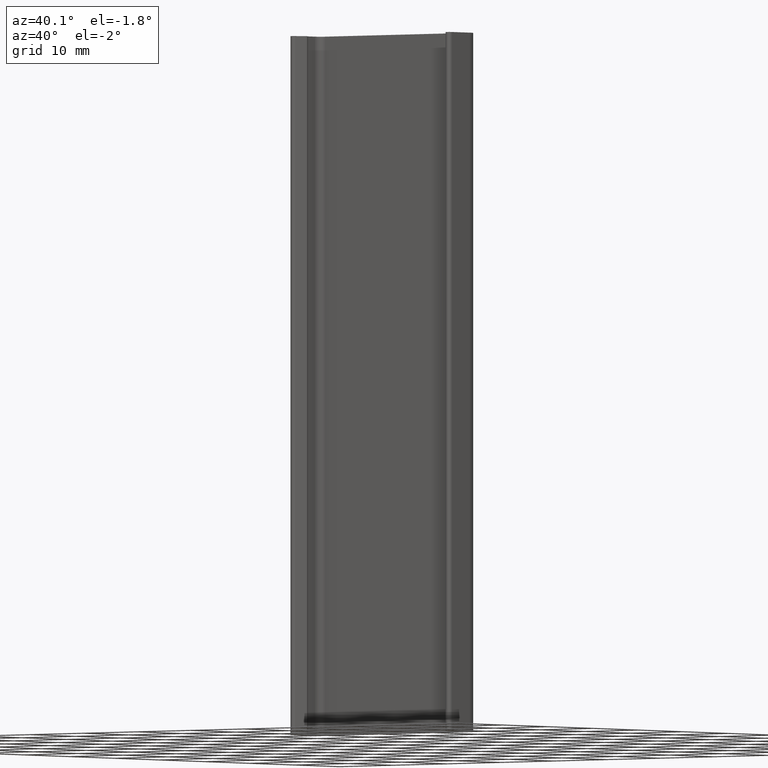
[diagram: clean part render]
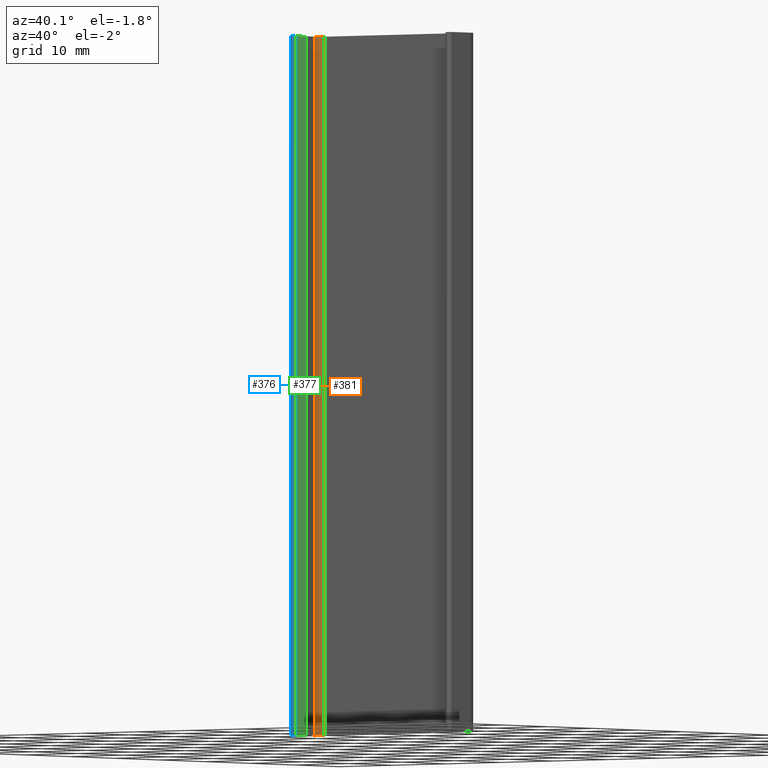
[diagram: same view with three faces highlighted in distinct colors, each labeled with its STEP entity id]
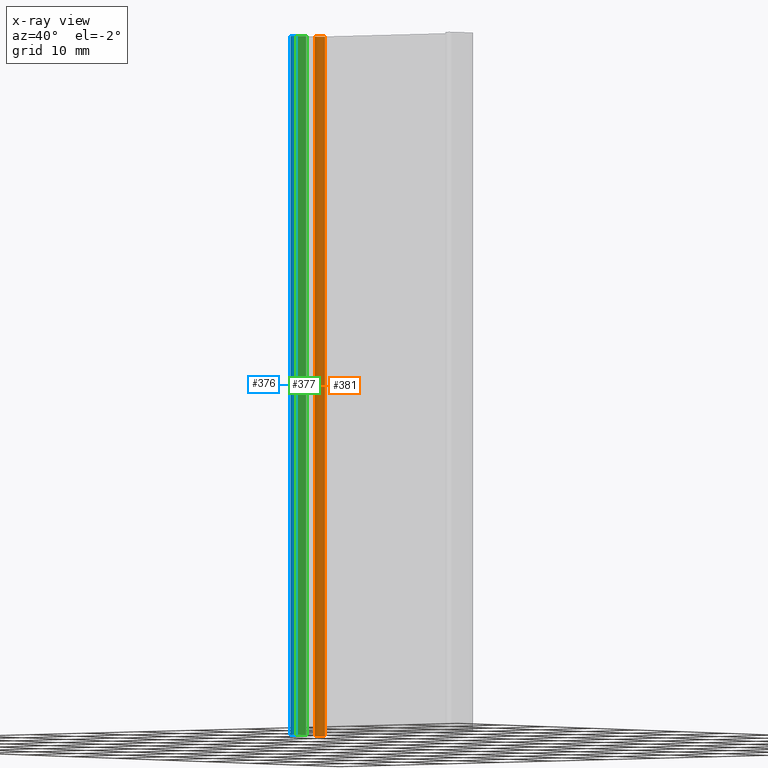
[diagram: x-ray of the same camera — body ghosted, the three highlighted faces saturated]
A machine part, auxiliary view with three faces highlighted in distinct colors.
The next image is the same camera in x-ray (body ghosted, the three faces saturated) — at least one of them is partly hidden behind the body in this view.
Their STEP definitions:

[orange] entity #381 — the highlighted cylindrical surface (edge-blend (fillet) strip) has radius 1 mm, axis along (0, 0, 1).
#29=CIRCLE('',#418,1.);
#30=CIRCLE('',#419,1.);
#38=CYLINDRICAL_SURFACE('',#417,1.);
#55=FACE_OUTER_BOUND('',#75,.T.);
#75=EDGE_LOOP('',(#309,#310,#311,#312));
#80=LINE('',#541,#118);
#114=LINE('',#637,#152);
#118=VECTOR('',#428,100.);
#152=VECTOR('',#520,100.);
#155=VERTEX_POINT('',#537);
#157=VERTEX_POINT('',#540);
#189=VERTEX_POINT('',#633);
#190=VERTEX_POINT('',#635);
#192=EDGE_CURVE('',#157,#155,#80,.T.);
#240=EDGE_CURVE('',#190,#189,#114,.T.);
#241=EDGE_CURVE('',#189,#155,#29,.T.);
#242=EDGE_CURVE('',#157,#190,#30,.T.);
#309=ORIENTED_EDGE('',*,*,#241,.F.);
#310=ORIENTED_EDGE('',*,*,#240,.F.);
#311=ORIENTED_EDGE('',*,*,#242,.F.);
#312=ORIENTED_EDGE('',*,*,#192,.T.);
#381=ADVANCED_FACE('',(#55),#38,.F.);
#417=AXIS2_PLACEMENT_3D('',#638,#521,#522);
#418=AXIS2_PLACEMENT_3D('',#639,#523,#524);
#419=AXIS2_PLACEMENT_3D('',#640,#525,#526);
#428=DIRECTION('',(0.,0.,1.));
#520=DIRECTION('',(0.,0.,1.));
#521=DIRECTION('center_axis',(0.,0.,1.));
#522=DIRECTION('ref_axis',(0.,1.,0.));
#523=DIRECTION('center_axis',(0.,0.,-1.));
#524=DIRECTION('ref_axis',(0.,1.,0.));
#525=DIRECTION('center_axis',(0.,0.,1.));
#526=DIRECTION('ref_axis',(0.,1.,0.));
#537=CARTESIAN_POINT('',(-12.6999999999994,-1.29999999999998,100.));
#540=CARTESIAN_POINT('',(-12.6999999999994,-1.29999999999998,0.));
#541=CARTESIAN_POINT('',(-12.6999999999994,-1.29999999999998,0.));
#633=CARTESIAN_POINT('',(-13.6999999999994,-2.29999999999998,100.));
#635=CARTESIAN_POINT('',(-13.6999999999994,-2.29999999999998,0.));
#637=CARTESIAN_POINT('',(-13.6999999999994,-2.29999999999998,0.));
#638=CARTESIAN_POINT('Origin',(-12.6999999999994,-2.29999999999998,0.));
#639=CARTESIAN_POINT('Origin',(-12.6999999999994,-2.29999999999998,100.));
#640=CARTESIAN_POINT('Origin',(-12.6999999999994,-2.29999999999998,0.));

[blue] entity #376 — the highlighted cylindrical surface (edge-blend (fillet) strip) has radius 0.5 mm, axis along (0, 0, 1).
#25=CIRCLE('',#409,0.499999999999943);
#26=CIRCLE('',#410,0.499999999999943);
#36=CYLINDRICAL_SURFACE('',#408,0.499999999999943);
#50=FACE_OUTER_BOUND('',#70,.T.);
#70=EDGE_LOOP('',(#289,#290,#291,#292));
#103=LINE('',#607,#141);
#104=LINE('',#613,#142);
#141=VECTOR('',#491,100.);
#142=VECTOR('',#498,100.);
#179=VERTEX_POINT('',#603);
#180=VERTEX_POINT('',#605);
#181=VERTEX_POINT('',#609);
#182=VERTEX_POINT('',#611);
#225=EDGE_CURVE('',#180,#179,#103,.T.);
#226=EDGE_CURVE('',#179,#181,#25,.T.);
#227=EDGE_CURVE('',#182,#180,#26,.T.);
#228=EDGE_CURVE('',#182,#181,#104,.T.);
#289=ORIENTED_EDGE('',*,*,#226,.F.);
#290=ORIENTED_EDGE('',*,*,#225,.F.);
#291=ORIENTED_EDGE('',*,*,#227,.F.);
#292=ORIENTED_EDGE('',*,*,#228,.T.);
#376=ADVANCED_FACE('',(#50),#36,.T.);
#408=AXIS2_PLACEMENT_3D('',#608,#492,#493);
#409=AXIS2_PLACEMENT_3D('',#610,#494,#495);
#410=AXIS2_PLACEMENT_3D('',#612,#496,#497);
#491=DIRECTION('',(0.,0.,1.));
#492=DIRECTION('center_axis',(0.,0.,1.));
#493=DIRECTION('ref_axis',(1.,-4.44089209850113E-15,0.));
#494=DIRECTION('center_axis',(0.,0.,1.));
#495=DIRECTION('ref_axis',(1.,-4.44089209850113E-15,0.));
#496=DIRECTION('center_axis',(0.,0.,-1.));
#497=DIRECTION('ref_axis',(1.,-4.44089209850113E-15,0.));
#498=DIRECTION('',(0.,0.,1.));
#603=CARTESIAN_POINT('',(-14.9999999999993,-5.9999999999895,100.));
#605=CARTESIAN_POINT('',(-14.9999999999993,-5.9999999999895,0.));
#607=CARTESIAN_POINT('',(-14.9999999999993,-5.9999999999895,0.));
#608=CARTESIAN_POINT('Origin',(-14.4999999999994,-5.9999999999895,0.));
#609=CARTESIAN_POINT('',(-14.0642002453363,-6.24510930996272,100.));
#610=CARTESIAN_POINT('Origin',(-14.4999999999994,-5.9999999999895,100.));
#611=CARTESIAN_POINT('',(-14.0642002453363,-6.24510930996272,0.));
#612=CARTESIAN_POINT('Origin',(-14.4999999999994,-5.9999999999895,0.));
#613=CARTESIAN_POINT('',(-14.0642002453363,-6.24510930996272,0.));

[green] entity #377 — the highlighted planar face has unit normal (-0.8716, 0.4902, 0).
#51=FACE_OUTER_BOUND('',#71,.T.);
#71=EDGE_LOOP('',(#293,#294,#295,#296));
#104=LINE('',#613,#142);
#105=LINE('',#616,#143);
#106=LINE('',#618,#144);
#107=LINE('',#619,#145);
#142=VECTOR('',#498,100.);
#143=VECTOR('',#501,1.68430994772404);
#144=VECTOR('',#502,1.68430994772404);
#145=VECTOR('',#503,100.);
#181=VERTEX_POINT('',#609);
#182=VERTEX_POINT('',#611);
#183=VERTEX_POINT('',#615);
#184=VERTEX_POINT('',#617);
#228=EDGE_CURVE('',#182,#181,#104,.T.);
#229=EDGE_CURVE('',#181,#183,#105,.T.);
#230=EDGE_CURVE('',#184,#182,#106,.T.);
#231=EDGE_CURVE('',#184,#183,#107,.T.);
#293=ORIENTED_EDGE('',*,*,#229,.F.);
#294=ORIENTED_EDGE('',*,*,#228,.F.);
#295=ORIENTED_EDGE('',*,*,#230,.F.);
#296=ORIENTED_EDGE('',*,*,#231,.T.);
#359=PLANE('',#411);
#377=ADVANCED_FACE('',(#51),#359,.F.);
#411=AXIS2_PLACEMENT_3D('',#614,#499,#500);
#498=DIRECTION('',(0.,0.,1.));
#499=DIRECTION('center_axis',(-0.871599509326244,0.4902186199465,0.));
#500=DIRECTION('ref_axis',(-0.4902186199465,-0.871599509326244,0.));
#501=DIRECTION('',(0.4902186199465,0.871599509326244,0.));
#502=DIRECTION('',(-0.4902186199465,-0.871599509326244,0.));
#503=DIRECTION('',(0.,0.,1.));
#609=CARTESIAN_POINT('',(-14.0642002453363,-6.24510930996272,100.));
#611=CARTESIAN_POINT('',(-14.0642002453363,-6.24510930996272,0.));
#613=CARTESIAN_POINT('',(-14.0642002453363,-6.24510930996272,0.));
#614=CARTESIAN_POINT('Origin',(-13.2385201472009,-4.77706558597314,0.));
#615=CARTESIAN_POINT('',(-13.2385201472009,-4.77706558597314,100.));
#616=CARTESIAN_POINT('',(-11.8022629778876,-2.22342728439992,100.));
#617=CARTESIAN_POINT('',(-13.2385201472009,-4.77706558597314,0.));
#618=CARTESIAN_POINT('',(-11.8022629778876,-2.22342728439992,0.));
#619=CARTESIAN_POINT('',(-13.2385201472009,-4.77706558597314,0.));